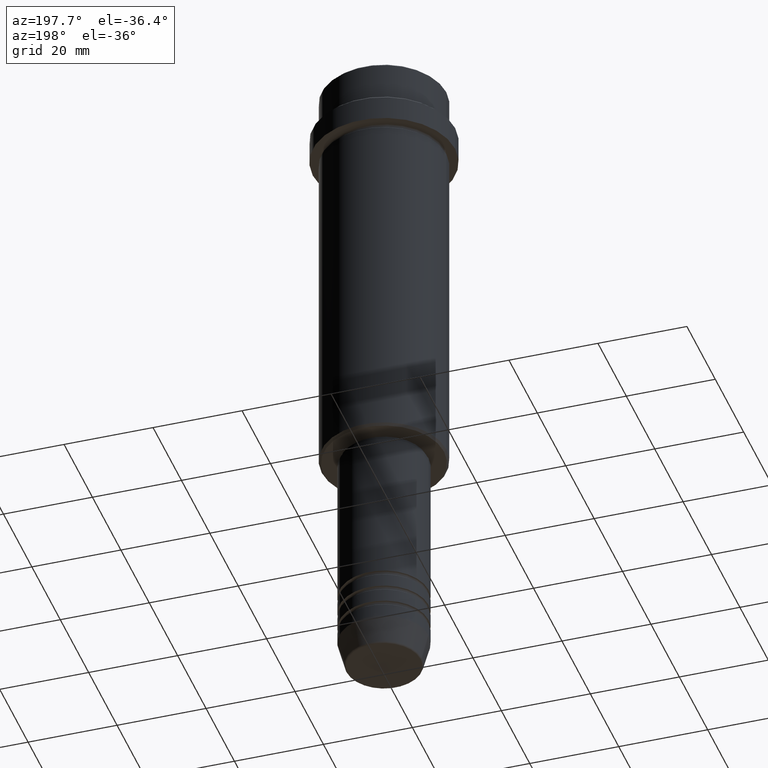
[diagram: clean part render]
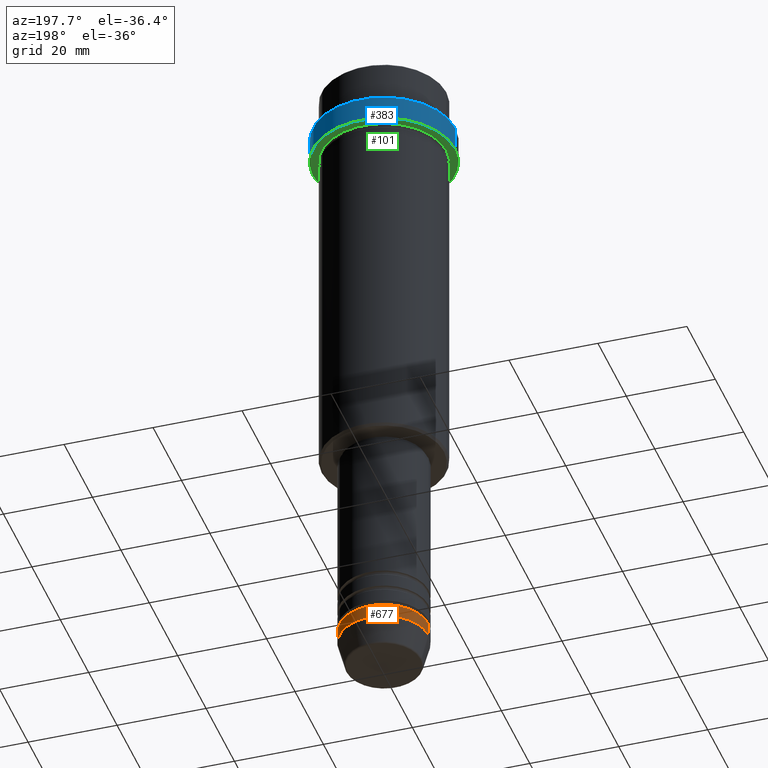
[diagram: same view with three faces highlighted in distinct colors, each labeled with its STEP entity id]
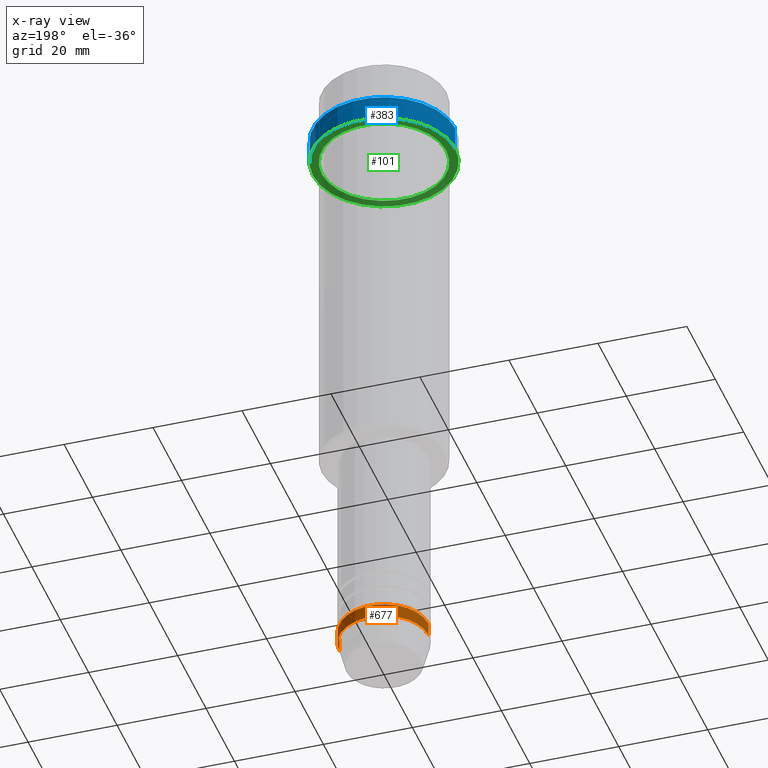
[diagram: x-ray of the same camera — body ghosted, the three highlighted faces saturated]
A machine part, auxiliary view with three faces highlighted in distinct colors.
The next image is the same camera in x-ray (body ghosted, the three faces saturated) — at least one of them is partly hidden behind the body in this view.
Their STEP definitions:

[orange] entity #677 — the highlighted cylindrical surface (partial cylindrical patch) has radius 10 mm, axis along (-0, -0, 1).
#93 = CARTESIAN_POINT ( 'NONE',  ( -10.00000000000000000, 1.224646799147353256E-15, -144.0000000000000284 ) ) ;
#113 = CARTESIAN_POINT ( 'NONE',  ( 0.000000000000000000, 0.000000000000000000, -141.0000000000000000 ) ) ;
#124 = CARTESIAN_POINT ( 'NONE',  ( 10.00000000000000000, 0.000000000000000000, 0.000000000000000000 ) ) ;
#133 = DIRECTION ( 'NONE',  ( -0.000000000000000000, -0.000000000000000000, 1.000000000000000000 ) ) ;
#179 = VERTEX_POINT ( 'NONE', #1372 ) ;
#197 = VECTOR ( 'NONE', #764, 1000.000000000000000 ) ;
#208 = DIRECTION ( 'NONE',  ( 1.000000000000000000, 0.000000000000000000, 0.000000000000000000 ) ) ;
#214 = CARTESIAN_POINT ( 'NONE',  ( -10.00000000000000000, 1.224646799147353256E-15, -141.0000000000000000 ) ) ;
#222 = LINE ( 'NONE', #124, #335 ) ;
#233 = CARTESIAN_POINT ( 'NONE',  ( 0.000000000000000000, 0.000000000000000000, -144.0000000000000284 ) ) ;
#270 = VERTEX_POINT ( 'NONE', #214 ) ;
#287 = CIRCLE ( 'NONE', #1051, 10.00000000000000000 ) ;
#315 = CYLINDRICAL_SURFACE ( 'NONE', #666, 10.00000000000000000 ) ;
#322 = VERTEX_POINT ( 'NONE', #1132 ) ;
#335 = VECTOR ( 'NONE', #551, 1000.000000000000000 ) ;
#402 = EDGE_CURVE ( 'NONE', #322, #179, #222, .T. ) ;
#509 = ORIENTED_EDGE ( 'NONE', *, *, #570, .F. ) ;
#551 = DIRECTION ( 'NONE',  ( -0.000000000000000000, -0.000000000000000000, 1.000000000000000000 ) ) ;
#556 = ORIENTED_EDGE ( 'NONE', *, *, #402, .F. ) ;
#570 = EDGE_CURVE ( 'NONE', #179, #270, #287, .T. ) ;
#590 = LINE ( 'NONE', #822, #197 ) ;
#632 = VERTEX_POINT ( 'NONE', #93 ) ;
#650 = CARTESIAN_POINT ( 'NONE',  ( 0.000000000000000000, 0.000000000000000000, 0.000000000000000000 ) ) ;
#662 = DIRECTION ( 'NONE',  ( 1.000000000000000000, 0.000000000000000000, 0.000000000000000000 ) ) ;
#666 = AXIS2_PLACEMENT_3D ( 'NONE', #650, #1292, #208 ) ;
#670 = ORIENTED_EDGE ( 'NONE', *, *, #1107, .T. ) ;
#677 = ADVANCED_FACE ( 'NONE', ( #1310 ), #315, .T. ) ;
#686 = CIRCLE ( 'NONE', #1355, 10.00000000000000000 ) ;
#739 = EDGE_CURVE ( 'NONE', #322, #632, #686, .T. ) ;
#764 = DIRECTION ( 'NONE',  ( -0.000000000000000000, -0.000000000000000000, 1.000000000000000000 ) ) ;
#793 = DIRECTION ( 'NONE',  ( -0.000000000000000000, -0.000000000000000000, 1.000000000000000000 ) ) ;
#822 = CARTESIAN_POINT ( 'NONE',  ( -10.00000000000000000, 1.224646799147353256E-15, 0.000000000000000000 ) ) ;
#972 = EDGE_LOOP ( 'NONE', ( #1384, #670, #509, #556 ) ) ;
#1051 = AXIS2_PLACEMENT_3D ( 'NONE', #113, #793, #662 ) ;
#1107 = EDGE_CURVE ( 'NONE', #632, #270, #590, .T. ) ;
#1132 = CARTESIAN_POINT ( 'NONE',  ( 10.00000000000000000, 0.000000000000000000, -144.0000000000000284 ) ) ;
#1292 = DIRECTION ( 'NONE',  ( -0.000000000000000000, -0.000000000000000000, 1.000000000000000000 ) ) ;
#1310 = FACE_OUTER_BOUND ( 'NONE', #972, .T. ) ;
#1355 = AXIS2_PLACEMENT_3D ( 'NONE', #233, #133, #1358 ) ;
#1358 = DIRECTION ( 'NONE',  ( 1.000000000000000000, 0.000000000000000000, 0.000000000000000000 ) ) ;
#1372 = CARTESIAN_POINT ( 'NONE',  ( 10.00000000000000000, 0.000000000000000000, -141.0000000000000000 ) ) ;
#1384 = ORIENTED_EDGE ( 'NONE', *, *, #739, .T. ) ;

[blue] entity #383 — the highlighted cylindrical surface (partial cylindrical patch) has radius 16 mm, axis along (-0, -0, 1).
#7 = CIRCLE ( 'NONE', #683, 15.99999999999998579 ) ;
#8 = CIRCLE ( 'NONE', #1279, 15.99999999999998579 ) ;
#21 = EDGE_CURVE ( 'NONE', #968, #1271, #7, .T. ) ;
#29 = ORIENTED_EDGE ( 'NONE', *, *, #278, .F. ) ;
#57 = DIRECTION ( 'NONE',  ( -0.000000000000000000, -0.000000000000000000, 1.000000000000000000 ) ) ;
#142 = VERTEX_POINT ( 'NONE', #1048 ) ;
#165 = EDGE_CURVE ( 'NONE', #142, #1409, #8, .T. ) ;
#192 = EDGE_CURVE ( 'NONE', #1409, #968, #1406, .T. ) ;
#245 = ORIENTED_EDGE ( 'NONE', *, *, #192, .T. ) ;
#253 = DIRECTION ( 'NONE',  ( 1.000000000000000000, 0.000000000000000000, 0.000000000000000000 ) ) ;
#278 = EDGE_CURVE ( 'NONE', #142, #1271, #1289, .T. ) ;
#295 = CARTESIAN_POINT ( 'NONE',  ( 15.99999999999998579, 0.000000000000000000, 0.000000000000000000 ) ) ;
#311 = VECTOR ( 'NONE', #862, 1000.000000000000000 ) ;
#352 = CARTESIAN_POINT ( 'NONE',  ( -15.99999999999998579, 1.959434878635763554E-15, -16.00000000000000000 ) ) ;
#363 = ORIENTED_EDGE ( 'NONE', *, *, #21, .T. ) ;
#383 = ADVANCED_FACE ( 'NONE', ( #461 ), #1349, .T. ) ;
#412 = DIRECTION ( 'NONE',  ( -0.000000000000000000, -0.000000000000000000, 1.000000000000000000 ) ) ;
#427 = VECTOR ( 'NONE', #412, 1000.000000000000000 ) ;
#461 = FACE_OUTER_BOUND ( 'NONE', #1266, .T. ) ;
#654 = ORIENTED_EDGE ( 'NONE', *, *, #165, .T. ) ;
#673 = DIRECTION ( 'NONE',  ( -0.000000000000000000, -0.000000000000000000, 1.000000000000000000 ) ) ;
#683 = AXIS2_PLACEMENT_3D ( 'NONE', #845, #1282, #1165 ) ;
#729 = CARTESIAN_POINT ( 'NONE',  ( -15.99999999999998579, 1.959434878635763554E-15, 0.000000000000000000 ) ) ;
#782 = AXIS2_PLACEMENT_3D ( 'NONE', #786, #673, #1216 ) ;
#786 = CARTESIAN_POINT ( 'NONE',  ( 0.000000000000000000, 0.000000000000000000, 0.000000000000000000 ) ) ;
#824 = CARTESIAN_POINT ( 'NONE',  ( 0.000000000000000000, 0.000000000000000000, -16.00000000000000000 ) ) ;
#845 = CARTESIAN_POINT ( 'NONE',  ( 0.000000000000000000, 0.000000000000000000, -10.49999999999997158 ) ) ;
#862 = DIRECTION ( 'NONE',  ( -0.000000000000000000, -0.000000000000000000, 1.000000000000000000 ) ) ;
#968 = VERTEX_POINT ( 'NONE', #1046 ) ;
#1046 = CARTESIAN_POINT ( 'NONE',  ( -15.99999999999998579, 1.959434878635763554E-15, -10.49999999999997158 ) ) ;
#1048 = CARTESIAN_POINT ( 'NONE',  ( 15.99999999999998579, 0.000000000000000000, -16.00000000000000000 ) ) ;
#1165 = DIRECTION ( 'NONE',  ( 1.000000000000000000, 0.000000000000000000, 0.000000000000000000 ) ) ;
#1216 = DIRECTION ( 'NONE',  ( 1.000000000000000000, 0.000000000000000000, 0.000000000000000000 ) ) ;
#1266 = EDGE_LOOP ( 'NONE', ( #654, #245, #363, #29 ) ) ;
#1271 = VERTEX_POINT ( 'NONE', #1294 ) ;
#1279 = AXIS2_PLACEMENT_3D ( 'NONE', #824, #57, #253 ) ;
#1282 = DIRECTION ( 'NONE',  ( 0.000000000000000000, 0.000000000000000000, -1.000000000000000000 ) ) ;
#1289 = LINE ( 'NONE', #295, #311 ) ;
#1294 = CARTESIAN_POINT ( 'NONE',  ( 15.99999999999998579, 0.000000000000000000, -10.49999999999997158 ) ) ;
#1349 = CYLINDRICAL_SURFACE ( 'NONE', #782, 15.99999999999998579 ) ;
#1406 = LINE ( 'NONE', #729, #427 ) ;
#1409 = VERTEX_POINT ( 'NONE', #352 ) ;

[green] entity #101 — the highlighted planar face has unit normal (0, 0, -1).
#8 = CIRCLE ( 'NONE', #1279, 15.99999999999998579 ) ;
#10 = AXIS2_PLACEMENT_3D ( 'NONE', #362, #814, #1128 ) ;
#35 = EDGE_LOOP ( 'NONE', ( #1334, #810 ) ) ;
#57 = DIRECTION ( 'NONE',  ( -0.000000000000000000, -0.000000000000000000, 1.000000000000000000 ) ) ;
#67 = AXIS2_PLACEMENT_3D ( 'NONE', #515, #1307, #1188 ) ;
#99 = CARTESIAN_POINT ( 'NONE',  ( 13.99999999999997868, 1.714505518806292074E-15, -16.00000000000000000 ) ) ;
#101 = ADVANCED_FACE ( 'NONE', ( #1155, #1150 ), #158, .T. ) ;
#142 = VERTEX_POINT ( 'NONE', #1048 ) ;
#158 = PLANE ( 'NONE',  #720 ) ;
#165 = EDGE_CURVE ( 'NONE', #142, #1409, #8, .T. ) ;
#253 = DIRECTION ( 'NONE',  ( 1.000000000000000000, 0.000000000000000000, 0.000000000000000000 ) ) ;
#260 = EDGE_CURVE ( 'NONE', #1376, #613, #1049, .T. ) ;
#323 = DIRECTION ( 'NONE',  ( -1.000000000000000000, 0.000000000000000000, 0.000000000000000000 ) ) ;
#343 = EDGE_LOOP ( 'NONE', ( #574, #502 ) ) ;
#352 = CARTESIAN_POINT ( 'NONE',  ( -15.99999999999998579, 1.959434878635763554E-15, -16.00000000000000000 ) ) ;
#362 = CARTESIAN_POINT ( 'NONE',  ( 0.000000000000000000, 0.000000000000000000, -16.00000000000000000 ) ) ;
#428 = CARTESIAN_POINT ( 'NONE',  ( 0.000000000000000000, 0.000000000000000000, -16.00000000000000000 ) ) ;
#502 = ORIENTED_EDGE ( 'NONE', *, *, #896, .F. ) ;
#515 = CARTESIAN_POINT ( 'NONE',  ( 0.000000000000000000, 0.000000000000000000, -16.00000000000000000 ) ) ;
#574 = ORIENTED_EDGE ( 'NONE', *, *, #165, .F. ) ;
#613 = VERTEX_POINT ( 'NONE', #1182 ) ;
#661 = AXIS2_PLACEMENT_3D ( 'NONE', #428, #1083, #323 ) ;
#720 = AXIS2_PLACEMENT_3D ( 'NONE', #1029, #1038, #946 ) ;
#753 = EDGE_CURVE ( 'NONE', #613, #1376, #1396, .T. ) ;
#810 = ORIENTED_EDGE ( 'NONE', *, *, #260, .T. ) ;
#814 = DIRECTION ( 'NONE',  ( -0.000000000000000000, -0.000000000000000000, 1.000000000000000000 ) ) ;
#824 = CARTESIAN_POINT ( 'NONE',  ( 0.000000000000000000, 0.000000000000000000, -16.00000000000000000 ) ) ;
#896 = EDGE_CURVE ( 'NONE', #1409, #142, #991, .T. ) ;
#946 = DIRECTION ( 'NONE',  ( -1.000000000000000000, 0.000000000000000000, -0.000000000000000000 ) ) ;
#991 = CIRCLE ( 'NONE', #67, 15.99999999999998579 ) ;
#1029 = CARTESIAN_POINT ( 'NONE',  ( 0.000000000000000000, 15.99999999999998579, -16.00000000000000000 ) ) ;
#1038 = DIRECTION ( 'NONE',  ( 0.000000000000000000, 0.000000000000000000, -1.000000000000000000 ) ) ;
#1048 = CARTESIAN_POINT ( 'NONE',  ( 15.99999999999998579, 0.000000000000000000, -16.00000000000000000 ) ) ;
#1049 = CIRCLE ( 'NONE', #661, 13.99999999999997868 ) ;
#1083 = DIRECTION ( 'NONE',  ( -0.000000000000000000, -0.000000000000000000, 1.000000000000000000 ) ) ;
#1128 = DIRECTION ( 'NONE',  ( -1.000000000000000000, 0.000000000000000000, 0.000000000000000000 ) ) ;
#1150 = FACE_OUTER_BOUND ( 'NONE', #343, .T. ) ;
#1155 = FACE_BOUND ( 'NONE', #35, .T. ) ;
#1182 = CARTESIAN_POINT ( 'NONE',  ( -13.99999999999997868, 0.000000000000000000, -16.00000000000000000 ) ) ;
#1188 = DIRECTION ( 'NONE',  ( 1.000000000000000000, 0.000000000000000000, 0.000000000000000000 ) ) ;
#1279 = AXIS2_PLACEMENT_3D ( 'NONE', #824, #57, #253 ) ;
#1307 = DIRECTION ( 'NONE',  ( -0.000000000000000000, -0.000000000000000000, 1.000000000000000000 ) ) ;
#1334 = ORIENTED_EDGE ( 'NONE', *, *, #753, .T. ) ;
#1376 = VERTEX_POINT ( 'NONE', #99 ) ;
#1396 = CIRCLE ( 'NONE', #10, 13.99999999999997868 ) ;
#1409 = VERTEX_POINT ( 'NONE', #352 ) ;